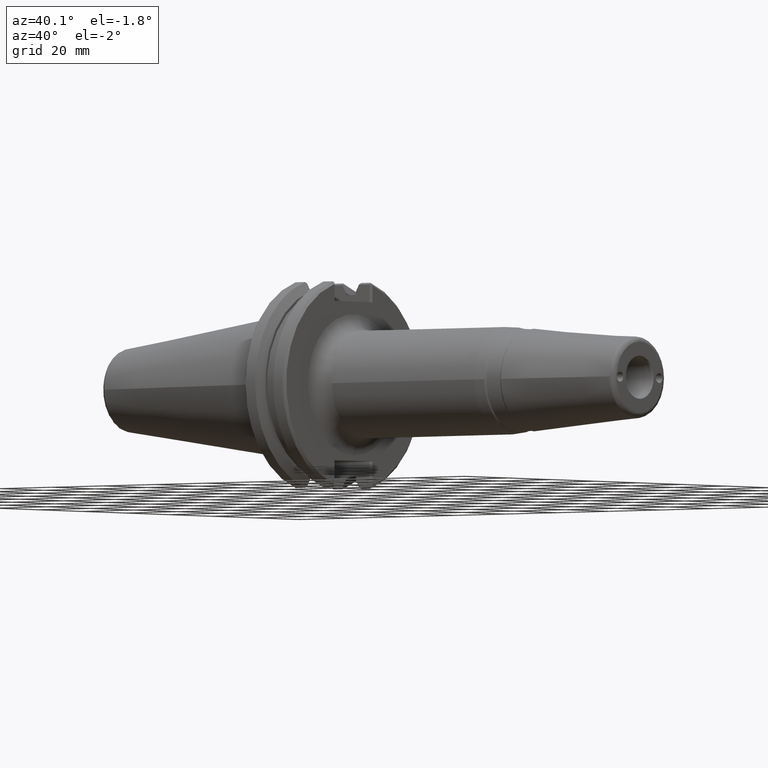
[diagram: clean part render]
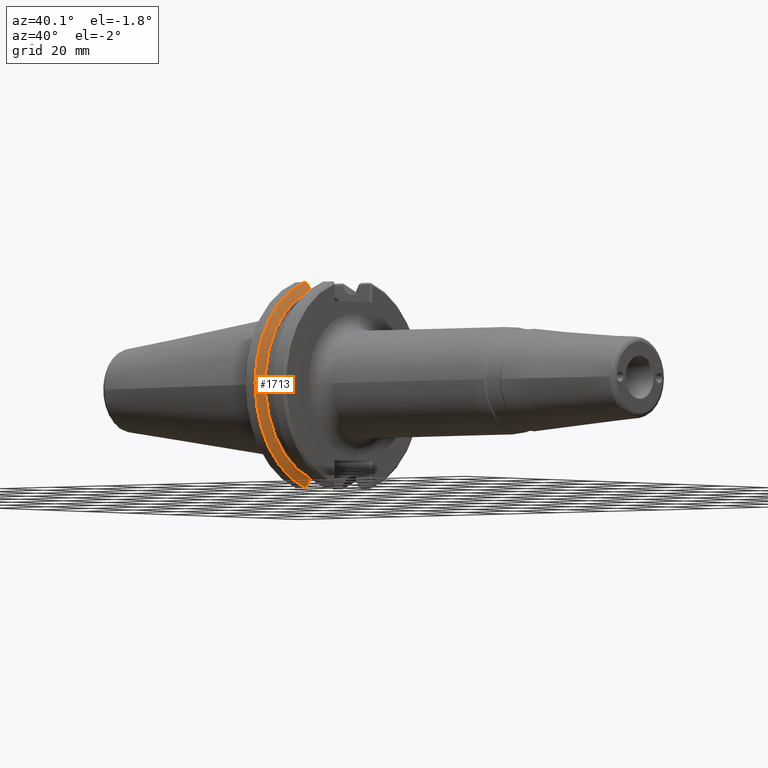
[diagram: same view with one face highlighted and labeled with its STEP entity id]
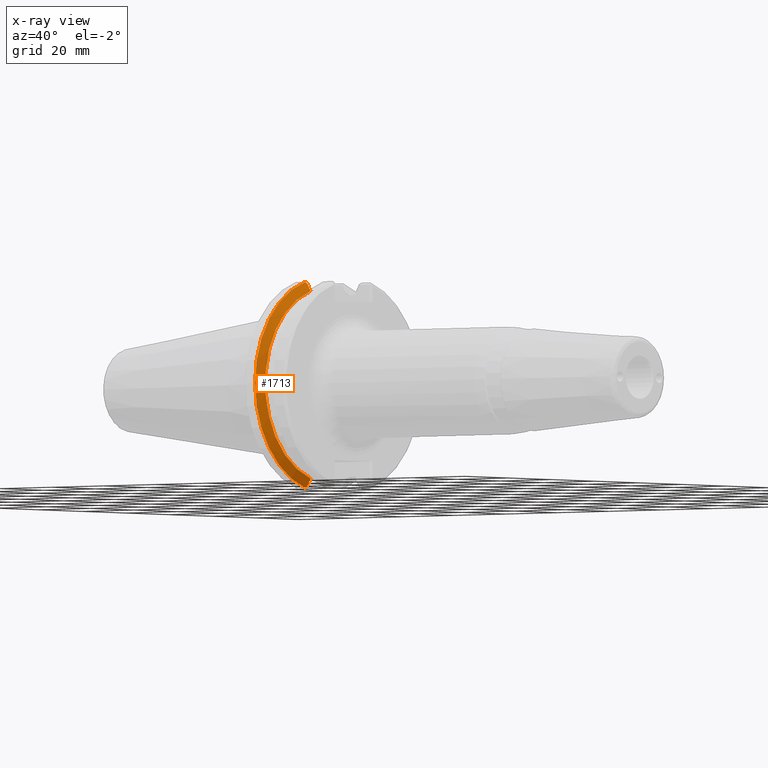
[diagram: x-ray of the same camera — body ghosted, the highlighted face saturated]
A machine part, auxiliary view. The second image highlights one B-rep face of the part: STEP entity #1713.
The next image is the same camera in x-ray: the body ghosted, the highlighted face saturated — about 0% of this face is hidden behind the body in this view.
In plain terms, the highlighted conical surface has half-angle 60 deg.
Its self-contained STEP definition (entity closure, byte-faithful):
#16=(
BOUNDED_CURVE()
B_SPLINE_CURVE(2,(#2846,#2847,#2848),.UNSPECIFIED.,.F.,.F.)
B_SPLINE_CURVE_WITH_KNOTS((3,3),(0.0700890653323173,0.330892155381697),
 .UNSPECIFIED.)
CURVE()
GEOMETRIC_REPRESENTATION_ITEM()
RATIONAL_B_SPLINE_CURVE((1.00037936412864,1.00089549356667,1.))
REPRESENTATION_ITEM('')
);
#36=(
BOUNDED_CURVE()
B_SPLINE_CURVE(2,(#3044,#3045,#3046),.UNSPECIFIED.,.F.,.F.)
B_SPLINE_CURVE_WITH_KNOTS((3,3),(0.,0.260803090049276),.UNSPECIFIED.)
CURVE()
GEOMETRIC_REPRESENTATION_ITEM()
RATIONAL_B_SPLINE_CURVE((1.,1.00089549356996,1.00037936413003))
REPRESENTATION_ITEM('')
);
#40=(
BOUNDED_CURVE()
B_SPLINE_CURVE(2,(#3076,#3077,#3078),.UNSPECIFIED.,.F.,.F.)
B_SPLINE_CURVE_WITH_KNOTS((3,3),(0.,0.0813575226075389),.UNSPECIFIED.)
CURVE()
GEOMETRIC_REPRESENTATION_ITEM()
RATIONAL_B_SPLINE_CURVE((1.,1.00036058680292,1.00057146939304))
REPRESENTATION_ITEM('')
);
#42=(
BOUNDED_CURVE()
B_SPLINE_CURVE(2,(#3090,#3091,#3092),.UNSPECIFIED.,.F.,.F.)
B_SPLINE_CURVE_WITH_KNOTS((3,3),(0.310567973945272,0.391925496552883),
 .UNSPECIFIED.)
CURVE()
GEOMETRIC_REPRESENTATION_ITEM()
RATIONAL_B_SPLINE_CURVE((1.000571469393,1.0003605868029,1.))
REPRESENTATION_ITEM('')
);
#85=CONICAL_SURFACE('',#1914,32.6621119168364,1.04719755119635);
#434=FACE_OUTER_BOUND('',#527,.T.);
#527=EDGE_LOOP('',(#1546,#1547,#1548,#1549,#1550,#1551));
#609=CIRCLE('',#1870,31.75);
#630=CIRCLE('',#1915,28.9641238336744);
#723=VERTEX_POINT('',#2843);
#724=VERTEX_POINT('',#2845);
#777=VERTEX_POINT('',#3041);
#778=VERTEX_POINT('',#3043);
#785=VERTEX_POINT('',#3074);
#787=VERTEX_POINT('',#3082);
#927=EDGE_CURVE('',#724,#723,#16,.T.);
#1002=EDGE_CURVE('',#778,#777,#36,.T.);
#1015=EDGE_CURVE('',#785,#777,#40,.T.);
#1018=EDGE_CURVE('',#787,#785,#609,.T.);
#1020=EDGE_CURVE('',#724,#787,#42,.T.);
#1057=EDGE_CURVE('',#723,#778,#630,.T.);
#1546=ORIENTED_EDGE('',*,*,#1015,.F.);
#1547=ORIENTED_EDGE('',*,*,#1018,.F.);
#1548=ORIENTED_EDGE('',*,*,#1020,.F.);
#1549=ORIENTED_EDGE('',*,*,#927,.T.);
#1550=ORIENTED_EDGE('',*,*,#1057,.T.);
#1551=ORIENTED_EDGE('',*,*,#1002,.T.);
#1713=ADVANCED_FACE('',(#434),#85,.T.);
#1870=AXIS2_PLACEMENT_3D('',#3084,#2279,#2280);
#1914=AXIS2_PLACEMENT_3D('',#3176,#2380,#2381);
#1915=AXIS2_PLACEMENT_3D('',#3177,#2382,#2383);
#2279=DIRECTION('center_axis',(-1.,0.,0.));
#2280=DIRECTION('ref_axis',(2.43677033581202E-13,1.,0.));
#2380=DIRECTION('center_axis',(-1.,2.43677033581203E-13,0.));
#2381=DIRECTION('ref_axis',(-2.43692033880709E-13,-1.,-5.20660583828602E-15));
#2382=DIRECTION('center_axis',(-1.,2.43677033581203E-13,0.));
#2383=DIRECTION('ref_axis',(2.43662033281696E-13,1.,0.));
#2843=CARTESIAN_POINT('',(9.21638999999895,-8.12800000001056,-27.8002893051929));
#2845=CARTESIAN_POINT('',(7.96211919247437,-8.12800000001026,-30.0569878144085));
#2846=CARTESIAN_POINT('Ctrl Pts',(7.96211919247437,-8.12800000001026,-30.0569878144085));
#2847=CARTESIAN_POINT('Ctrl Pts',(8.61371574618889,-8.12800000001042,-28.8878521106857));
#2848=CARTESIAN_POINT('Ctrl Pts',(9.21639000000799,-8.12800000001056,-27.8002893051766));
#3041=CARTESIAN_POINT('',(7.96211919247405,-8.12800000001071,30.0569878144089));
#3043=CARTESIAN_POINT('',(9.21638999999895,-8.12800000001071,27.8002893051929));
#3044=CARTESIAN_POINT('Ctrl Pts',(9.21639000000799,-8.12800000001071,27.8002893051766));
#3045=CARTESIAN_POINT('Ctrl Pts',(8.61371574618507,-8.12800000001071,28.8878521106924));
#3046=CARTESIAN_POINT('Ctrl Pts',(7.96211919247405,-8.12800000001071,30.0569878144089));
#3074=CARTESIAN_POINT('',(7.60796364544296,-8.74009191268323,30.5233237600011));
#3076=CARTESIAN_POINT('Ctrl Pts',(7.60796364543492,-8.74009191269617,30.523323760011));
#3077=CARTESIAN_POINT('Ctrl Pts',(7.78775951811807,-8.43106068844117,30.287881393927));
#3078=CARTESIAN_POINT('Ctrl Pts',(7.96211919247405,-8.12800000001071,30.0569878144089));
#3082=CARTESIAN_POINT('',(7.60796364544296,-8.74009191268487,-30.5233237600007));
#3084=CARTESIAN_POINT('Origin',(7.60796364544296,0.,0.));
#3090=CARTESIAN_POINT('Ctrl Pts',(7.96211919247437,-8.12800000001026,-30.0569878144085));
#3091=CARTESIAN_POINT('Ctrl Pts',(7.78775951811831,-8.43106068844131,-30.2878813939266));
#3092=CARTESIAN_POINT('Ctrl Pts',(7.60796364543507,-8.74009191269693,-30.5233237600105));
#3176=CARTESIAN_POINT('Origin',(7.08135558472609,-1.00425654750382E-11,
0.));
#3177=CARTESIAN_POINT('Origin',(9.21639000000093,-1.05628243279461E-11,
0.));